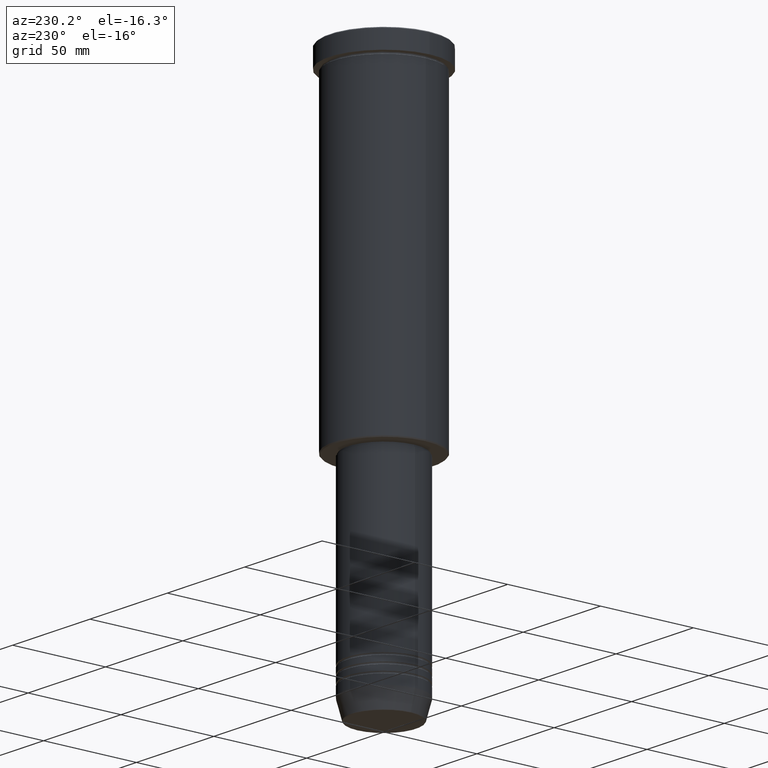
[diagram: clean part render]
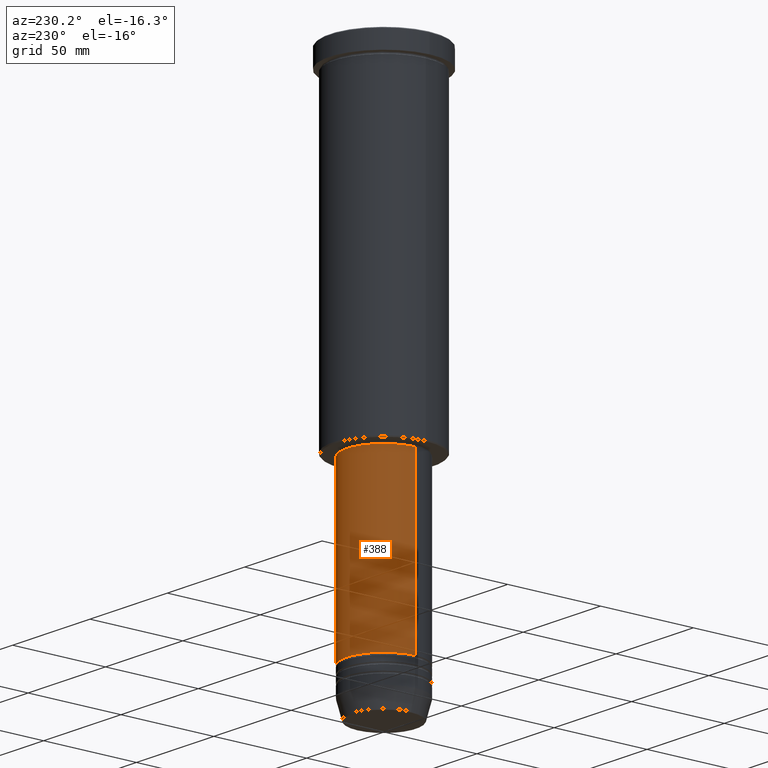
[diagram: same view with one face highlighted and labeled with its STEP entity id]
A machine part, auxiliary view. The second image highlights one B-rep face of the part: STEP entity #388.
In plain terms, the highlighted cylindrical surface (partial cylindrical patch) has radius 20 mm, axis along (-0, -0, 1).
Its self-contained STEP definition (entity closure, byte-faithful):
#17 = EDGE_CURVE ( 'NONE', #896, #803, #921, .T. ) ;
#29 = CARTESIAN_POINT ( 'NONE',  ( 19.99999999999999645, 0.000000000000000000, 0.000000000000000000 ) ) ;
#59 = CARTESIAN_POINT ( 'NONE',  ( 0.000000000000000000, 0.000000000000000000, 0.000000000000000000 ) ) ;
#131 = EDGE_CURVE ( 'NONE', #896, #289, #840, .T. ) ;
#178 = CARTESIAN_POINT ( 'NONE',  ( -19.99999999999999645, 2.449293598294706119E-15, -176.9999999999998863 ) ) ;
#197 = CARTESIAN_POINT ( 'NONE',  ( 0.000000000000000000, 0.000000000000000000, -176.9999999999998863 ) ) ;
#220 = CARTESIAN_POINT ( 'NONE',  ( 19.99999999999999645, 0.000000000000000000, -176.9999999999998863 ) ) ;
#233 = AXIS2_PLACEMENT_3D ( 'NONE', #59, #1138, #863 ) ;
#238 = ORIENTED_EDGE ( 'NONE', *, *, #131, .F. ) ;
#268 = VECTOR ( 'NONE', #804, 1000.000000000000000 ) ;
#289 = VERTEX_POINT ( 'NONE', #220 ) ;
#302 = CARTESIAN_POINT ( 'NONE',  ( 0.000000000000000000, 0.000000000000000000, -266.9999999999998863 ) ) ;
#315 = DIRECTION ( 'NONE',  ( 1.000000000000000000, 0.000000000000000000, 0.000000000000000000 ) ) ;
#330 = CARTESIAN_POINT ( 'NONE',  ( -19.99999999999999645, 2.449293598294706119E-15, 0.000000000000000000 ) ) ;
#385 = ORIENTED_EDGE ( 'NONE', *, *, #814, .T. ) ;
#388 = ADVANCED_FACE ( 'NONE', ( #691 ), #959, .T. ) ;
#464 = AXIS2_PLACEMENT_3D ( 'NONE', #302, #481, #315 ) ;
#481 = DIRECTION ( 'NONE',  ( -0.000000000000000000, -0.000000000000000000, 1.000000000000000000 ) ) ;
#557 = EDGE_LOOP ( 'NONE', ( #1183, #385, #695, #238 ) ) ;
#592 = CARTESIAN_POINT ( 'NONE',  ( -20.00000000000000000, 2.449293598294706513E-15, -266.9999999999998863 ) ) ;
#618 = LINE ( 'NONE', #330, #268 ) ;
#654 = DIRECTION ( 'NONE',  ( -0.000000000000000000, -0.000000000000000000, 1.000000000000000000 ) ) ;
#691 = FACE_OUTER_BOUND ( 'NONE', #557, .T. ) ;
#695 = ORIENTED_EDGE ( 'NONE', *, *, #1105, .F. ) ;
#762 = DIRECTION ( 'NONE',  ( 1.000000000000000000, 0.000000000000000000, 0.000000000000000000 ) ) ;
#773 = CIRCLE ( 'NONE', #948, 19.99999999999999645 ) ;
#803 = VERTEX_POINT ( 'NONE', #592 ) ;
#804 = DIRECTION ( 'NONE',  ( -0.000000000000000000, -0.000000000000000000, 1.000000000000000000 ) ) ;
#814 = EDGE_CURVE ( 'NONE', #803, #968, #618, .T. ) ;
#840 = LINE ( 'NONE', #29, #1164 ) ;
#863 = DIRECTION ( 'NONE',  ( 1.000000000000000000, 0.000000000000000000, 0.000000000000000000 ) ) ;
#896 = VERTEX_POINT ( 'NONE', #988 ) ;
#921 = CIRCLE ( 'NONE', #464, 20.00000000000000000 ) ;
#943 = DIRECTION ( 'NONE',  ( -0.000000000000000000, -0.000000000000000000, 1.000000000000000000 ) ) ;
#948 = AXIS2_PLACEMENT_3D ( 'NONE', #197, #654, #762 ) ;
#959 = CYLINDRICAL_SURFACE ( 'NONE', #233, 19.99999999999999645 ) ;
#968 = VERTEX_POINT ( 'NONE', #178 ) ;
#988 = CARTESIAN_POINT ( 'NONE',  ( 20.00000000000000000, 0.000000000000000000, -266.9999999999998863 ) ) ;
#1105 = EDGE_CURVE ( 'NONE', #289, #968, #773, .T. ) ;
#1138 = DIRECTION ( 'NONE',  ( -0.000000000000000000, -0.000000000000000000, 1.000000000000000000 ) ) ;
#1164 = VECTOR ( 'NONE', #943, 1000.000000000000000 ) ;
#1183 = ORIENTED_EDGE ( 'NONE', *, *, #17, .T. ) ;